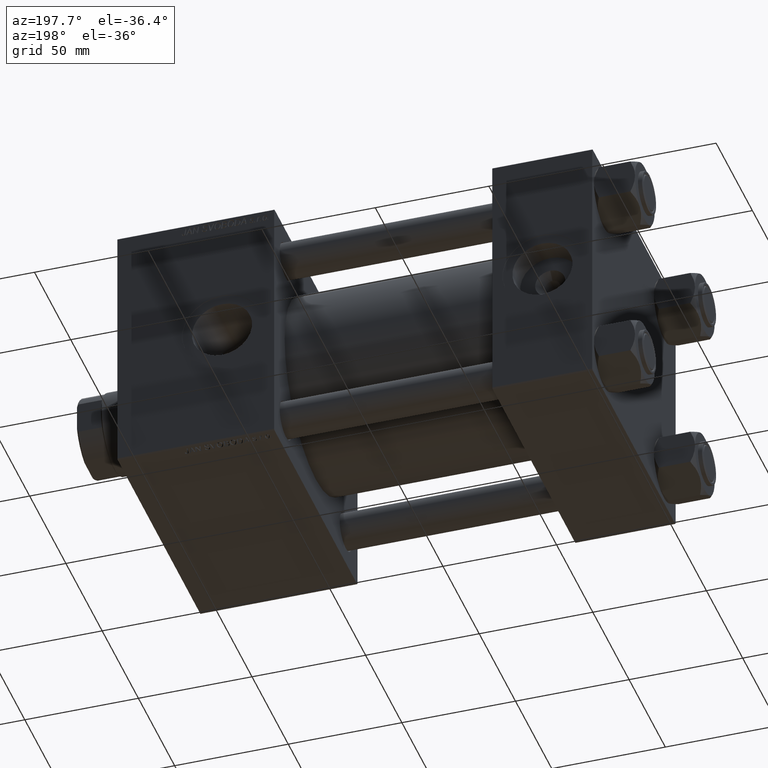
[diagram: clean part render]
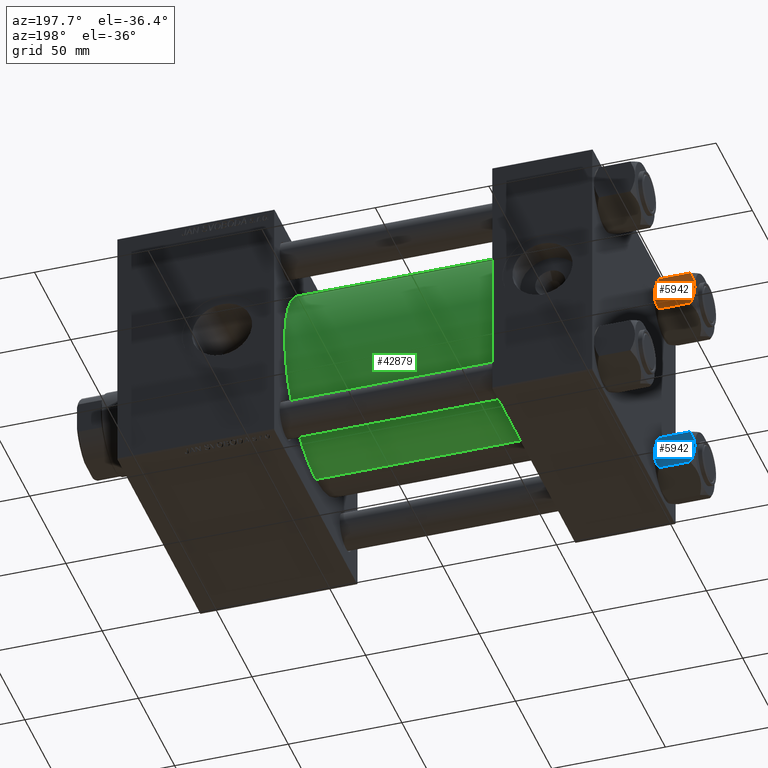
[diagram: same view with three faces highlighted in distinct colors, each labeled with its STEP entity id]
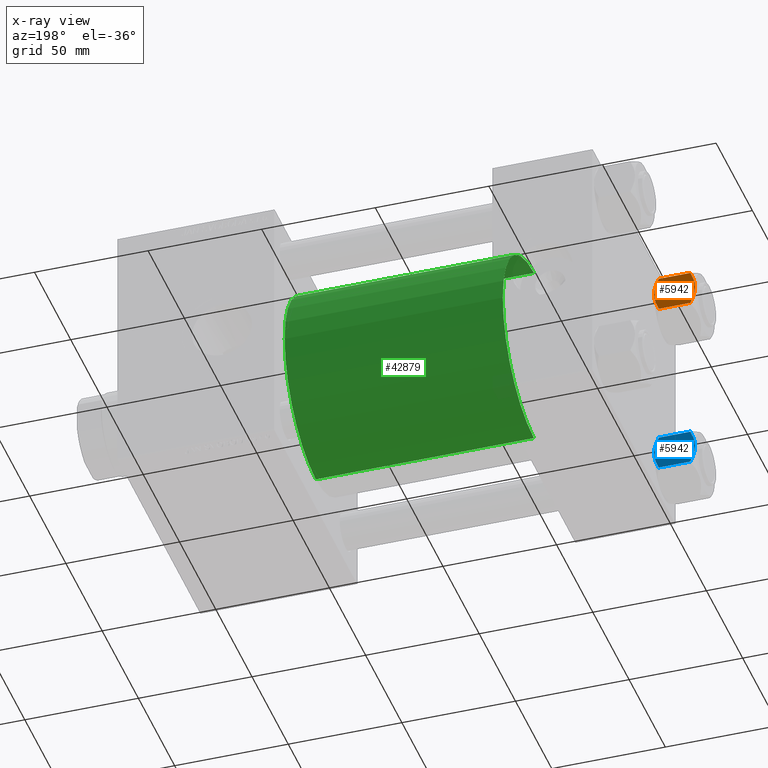
[diagram: x-ray of the same camera — body ghosted, the three highlighted faces saturated]
A machine part, auxiliary view with three faces highlighted in distinct colors.
The next image is the same camera in x-ray (body ghosted, the three faces saturated) — at least one of them is partly hidden behind the body in this view.
Their STEP definitions:

[orange] entity #5942 — the highlighted planar face has unit normal (-0, -1, 0).
#174 = CARTESIAN_POINT ( 'NONE',  ( 7.622943475354630571, -13.52731680711293372, -16.00000000000000000 ) ) ;
#524 = EDGE_CURVE ( 'NONE', #19882, #33821, #894, .T. ) ;
#531 = CARTESIAN_POINT ( 'NONE',  ( -7.030203932307560244, -13.52731680711293372, -16.29099812210859710 ) ) ;
#559 = ORIENTED_EDGE ( 'NONE', *, *, #44660, .F. ) ;
#878 = CARTESIAN_POINT ( 'NONE',  ( 7.622943475354630571, -13.52731680711293372, -16.00000000000000000 ) ) ;
#894 = LINE ( 'NONE', #44674, #5980 ) ;
#1727 = CARTESIAN_POINT ( 'NONE',  ( 7.810000000000002274, -13.52731680711293372, -18.00000000000000000 ) ) ;
#1875 = CARTESIAN_POINT ( 'NONE',  ( 7.810000000000002274, -13.52731680711293372, -1.999999999999998224 ) ) ;
#2148 = CARTESIAN_POINT ( 'NONE',  ( -5.189513245496330640, -13.52731680711293905, -0.9501108431732574466 ) ) ;
#3782 = CARTESIAN_POINT ( 'NONE',  ( 3.004629197474319246E-15, -13.52731680711293727, 0.000000000000000000 ) ) ;
#4074 = VERTEX_POINT ( 'NONE', #48386 ) ;
#4899 = CARTESIAN_POINT ( 'NONE',  ( -3.287826776903143067, -13.52731680711293727, -17.61954155462465366 ) ) ;
#5833 = DIRECTION ( 'NONE',  ( -1.000000000000000000, -2.221156819432531199E-16, 0.000000000000000000 ) ) ;
#5942 = ADVANCED_FACE ( 'NONE', ( #44746 ), #36800, .F. ) ;
#5975 = CARTESIAN_POINT ( 'NONE',  ( 3.004629197474319246E-15, -13.52731680711293727, 0.000000000000000000 ) ) ;
#5980 = VECTOR ( 'NONE', #12709, 1000.000000000000000 ) ;
#6823 = AXIS2_PLACEMENT_3D ( 'NONE', #1727, #40902, #5833 ) ;
#6865 = CARTESIAN_POINT ( 'NONE',  ( 7.030203932307590442, -13.52731680711293727, -1.709001877891394017 ) ) ;
#6908 = VECTOR ( 'NONE', #11295, 1000.000000000000000 ) ;
#7828 = B_SPLINE_CURVE_WITH_KNOTS ( 'NONE', 3,
 ( #35622, #44075, #32050, #9014, #15686, #31294, #4899, #24619, #20521, #27706, #531, #46894 ),
 .UNSPECIFIED., .F., .F.,
 ( 4, 2, 2, 2, 2, 4 ),
 ( 0.02774433486126546416, 0.02873404020403549919, 0.02972374554680553421, 0.03170315623234560426, 0.03368256691788567431, 0.03566197760342574435 ),
 .UNSPECIFIED. ) ;
#8546 = ORIENTED_EDGE ( 'NONE', *, *, #27789, .F. ) ;
#9014 = CARTESIAN_POINT ( 'NONE',  ( -1.333889873825127026, -13.52731680711293727, -17.93843358996560156 ) ) ;
#10363 = CARTESIAN_POINT ( 'NONE',  ( -2.638177715023105385, -13.52731680711294082, -0.2001540676698838062 ) ) ;
#11230 = CARTESIAN_POINT ( 'NONE',  ( 0.3330234424833860007, -13.52731680711293727, 1.736982230502816853E-15 ) ) ;
#11295 = DIRECTION ( 'NONE',  ( -0.000000000000000000, -0.000000000000000000, 1.000000000000000000 ) ) ;
#11489 = CARTESIAN_POINT ( 'NONE',  ( 7.030888348548049116, -13.52731680711293372, -16.29066211644970608 ) ) ;
#11898 = EDGE_CURVE ( 'NONE', #4074, #23043, #23073, .T. ) ;
#12561 = CARTESIAN_POINT ( 'NONE',  ( 7.810000000000002274, -13.52731680711293372, -16.00000000000000000 ) ) ;
#12709 = DIRECTION ( 'NONE',  ( 1.000000000000000000, 2.221156819432531199E-16, -0.000000000000000000 ) ) ;
#12957 = DIRECTION ( 'NONE',  ( -0.000000000000000000, -0.000000000000000000, 1.000000000000000000 ) ) ;
#13439 = CARTESIAN_POINT ( 'NONE',  ( 3.004629197474319246E-15, -13.52731680711293727, 0.000000000000000000 ) ) ;
#13451 = ORIENTED_EDGE ( 'NONE', *, *, #13508, .F. ) ;
#13508 = EDGE_CURVE ( 'NONE', #26713, #19882, #48503, .T. ) ;
#13689 = CARTESIAN_POINT ( 'NONE',  ( -7.622943475354647447, -13.52731680711293727, -2.000000000000000000 ) ) ;
#13946 = CARTESIAN_POINT ( 'NONE',  ( -7.030888348548060662, -13.52731680711294082, -1.709337883550297699 ) ) ;
#14309 = VERTEX_POINT ( 'NONE', #878 ) ;
#14704 = CARTESIAN_POINT ( 'NONE',  ( -7.622943475354625242, -13.52731680711293727, -16.00000000000000000 ) ) ;
#15686 = CARTESIAN_POINT ( 'NONE',  ( -1.663410456966165407, -13.52731680711293727, -17.90195050864300086 ) ) ;
#15982 = VECTOR ( 'NONE', #31506, 1000.000000000000000 ) ;
#16114 = ORIENTED_EDGE ( 'NONE', *, *, #37247, .F. ) ;
#16205 = VERTEX_POINT ( 'NONE', #38232 ) ;
#16787 = B_SPLINE_CURVE_WITH_KNOTS ( 'NONE', 3,
 ( #3782, #11230, #42442, #19405, #18649, #26838, #34259, #41935, #22977, #50370, #6865, #18897 ),
 .UNSPECIFIED., .F., .F.,
 ( 4, 2, 2, 2, 2, 4 ),
 ( 0.02774433486126546416, 0.02873404020403550266, 0.02972374554680554115, 0.03170315623234561814, 0.03368256691788569512, 0.03566197760342577211 ),
 .UNSPECIFIED. ) ;
#16861 = EDGE_CURVE ( 'NONE', #14309, #16205, #41271, .T. ) ;
#18106 = CARTESIAN_POINT ( 'NONE',  ( -7.809999999999999609, -13.52731680711293727, -1.999999999999998224 ) ) ;
#18649 = CARTESIAN_POINT ( 'NONE',  ( 1.663410456966175843, -13.52731680711293372, -0.09804949135698878826 ) ) ;
#18897 = CARTESIAN_POINT ( 'NONE',  ( 7.622943475354652776, -13.52731680711293372, -2.000000000000000000 ) ) ;
#19405 = CARTESIAN_POINT ( 'NONE',  ( 1.333889873825135686, -13.52731680711293549, -0.06156641003439144999 ) ) ;
#19882 = VERTEX_POINT ( 'NONE', #18106 ) ;
#20521 = CARTESIAN_POINT ( 'NONE',  ( -5.184073258379385152, -13.52731680711293727, -17.05185620934990709 ) ) ;
#21611 = CARTESIAN_POINT ( 'NONE',  ( -6.427364677720470709, -13.52731680711293727, -1.438506937155139109 ) ) ;
#22977 = CARTESIAN_POINT ( 'NONE',  ( 5.184073258379408244, -13.52731680711293372, -0.9481437906500832513 ) ) ;
#23043 = VERTEX_POINT ( 'NONE', #1875 ) ;
#23073 = LINE ( 'NONE', #46873, #31564 ) ;
#23171 = CARTESIAN_POINT ( 'NONE',  ( -7.809999999999999609, -13.52731680711293727, -16.00000000000000000 ) ) ;
#24256 = CARTESIAN_POINT ( 'NONE',  ( 4.553769687922296860, -13.52731680711293372, -17.26727080048547691 ) ) ;
#24372 = ORIENTED_EDGE ( 'NONE', *, *, #38760, .T. ) ;
#24579 = LINE ( 'NONE', #12561, #15982 ) ;
#24619 = CARTESIAN_POINT ( 'NONE',  ( -4.557734399832399141, -13.52731680711293905, -17.26585298258847700 ) ) ;
#25091 = CARTESIAN_POINT ( 'NONE',  ( -7.622943475354647447, -13.52731680711293727, -2.000000000000000000 ) ) ;
#26713 = VERTEX_POINT ( 'NONE', #23171 ) ;
#26838 = CARTESIAN_POINT ( 'NONE',  ( 2.644243758052992277, -13.52731680711293372, -0.2408281198023969893 ) ) ;
#27350 = CARTESIAN_POINT ( 'NONE',  ( 6.427364677720458275, -13.52731680711293549, -16.56149306284486045 ) ) ;
#27459 = VERTEX_POINT ( 'NONE', #5975 ) ;
#27706 = CARTESIAN_POINT ( 'NONE',  ( -6.422751913021801151, -13.52731680711293905, -16.56349088907410305 ) ) ;
#27789 = EDGE_CURVE ( 'NONE', #27459, #4074, #16787, .T. ) ;
#29302 = CARTESIAN_POINT ( 'NONE',  ( -4.553769687922305742, -13.52731680711294082, -0.7327291995145158721 ) ) ;
#29415 = CARTESIAN_POINT ( 'NONE',  ( 7.810000000000002274, -13.52731680711293372, -16.00000000000000000 ) ) ;
#29978 = LINE ( 'NONE', #46336, #6908 ) ;
#30772 = DIRECTION ( 'NONE',  ( 1.000000000000000000, 2.221156819432531199E-16, -0.000000000000000000 ) ) ;
#31294 = CARTESIAN_POINT ( 'NONE',  ( -2.644243758052979398, -13.52731680711293905, -17.75917188019759507 ) ) ;
#31506 = DIRECTION ( 'NONE',  ( -1.000000000000000000, -2.221156819432531199E-16, 0.000000000000000000 ) ) ;
#31564 = VECTOR ( 'NONE', #30772, 1000.000000000000000 ) ;
#32050 = CARTESIAN_POINT ( 'NONE',  ( -0.6693083573771156924, -13.52731680711293549, -17.98750666918891028 ) ) ;
#32254 = VECTOR ( 'NONE', #49281, 1000.000000000000000 ) ;
#33301 = ORIENTED_EDGE ( 'NONE', *, *, #43789, .F. ) ;
#33821 = VERTEX_POINT ( 'NONE', #25091 ) ;
#34259 = CARTESIAN_POINT ( 'NONE',  ( 3.287826776903156833, -13.52731680711293194, -0.3804584453753362960 ) ) ;
#35622 = CARTESIAN_POINT ( 'NONE',  ( 3.004629197474316879E-15, -13.52731680711292661, -18.00000000000000000 ) ) ;
#35671 = VECTOR ( 'NONE', #12957, 1000.000000000000000 ) ;
#35771 = CARTESIAN_POINT ( 'NONE',  ( 1.335584685993413956, -13.52731680711293194, -17.99999999999998934 ) ) ;
#35970 = CARTESIAN_POINT ( 'NONE',  ( -7.809999999999999609, -13.52731680711293727, -18.00000000000000000 ) ) ;
#36023 = CARTESIAN_POINT ( 'NONE',  ( 3.004629197474316879E-15, -13.52731680711292661, -18.00000000000000000 ) ) ;
#36800 = PLANE ( 'NONE',  #6823 ) ;
#37247 = EDGE_CURVE ( 'NONE', #41429, #14309, #45439, .T. ) ;
#37503 = CARTESIAN_POINT ( 'NONE',  ( 7.810000000000002274, -13.52731680711293372, -16.00000000000000000 ) ) ;
#37662 = EDGE_CURVE ( 'NONE', #16205, #43953, #7828, .T. ) ;
#38232 = CARTESIAN_POINT ( 'NONE',  ( 3.004629197474316879E-15, -13.52731680711292661, -18.00000000000000000 ) ) ;
#38760 = EDGE_CURVE ( 'NONE', #41429, #23043, #29978, .T. ) ;
#38867 = CARTESIAN_POINT ( 'NONE',  ( 5.189513245496319094, -13.52731680711293372, -17.04988915682674033 ) ) ;
#39216 = ORIENTED_EDGE ( 'NONE', *, *, #11898, .F. ) ;
#40257 = ORIENTED_EDGE ( 'NONE', *, *, #37662, .F. ) ;
#40902 = DIRECTION ( 'NONE',  ( -2.221156819432531199E-16, 1.000000000000000000, 0.000000000000000000 ) ) ;
#41271 = B_SPLINE_CURVE_WITH_KNOTS ( 'NONE', 3,
 ( #174, #11489, #27350, #38867, #24256, #46535, #35771, #36023 ),
 .UNSPECIFIED., .F., .F.,
 ( 4, 2, 2, 4 ),
 ( 0.01980594295952731870, 0.02179054093496185507, 0.02377513891039638796, 0.02774433486126546416 ),
 .UNSPECIFIED. ) ;
#41429 = VERTEX_POINT ( 'NONE', #29415 ) ;
#41935 = CARTESIAN_POINT ( 'NONE',  ( 4.557734399832416905, -13.52731680711293016, -0.7341470174115138914 ) ) ;
#42442 = CARTESIAN_POINT ( 'NONE',  ( 0.6693083573771232420, -13.52731680711293372, -0.01249333081107902900 ) ) ;
#43143 = ORIENTED_EDGE ( 'NONE', *, *, #524, .F. ) ;
#43789 = EDGE_CURVE ( 'NONE', #33821, #27459, #48326, .T. ) ;
#43953 = VERTEX_POINT ( 'NONE', #14704 ) ;
#44075 = CARTESIAN_POINT ( 'NONE',  ( -0.3330234424833806162, -13.52731680711293727, -17.99999999999999645 ) ) ;
#44660 = EDGE_CURVE ( 'NONE', #43953, #26713, #24579, .T. ) ;
#44674 = CARTESIAN_POINT ( 'NONE',  ( 7.810000000000002274, -13.52731680711293372, -1.999999999999998224 ) ) ;
#44746 = FACE_OUTER_BOUND ( 'NONE', #44760, .T. ) ;
#44760 = EDGE_LOOP ( 'NONE', ( #16114, #24372, #39216, #8546, #33301, #43143, #13451, #559, #40257, #44828 ) ) ;
#44828 = ORIENTED_EDGE ( 'NONE', *, *, #16861, .F. ) ;
#45154 = CARTESIAN_POINT ( 'NONE',  ( -1.335584685993413956, -13.52731680711294082, 1.666960840196463265E-15 ) ) ;
#45439 = LINE ( 'NONE', #37503, #32254 ) ;
#46336 = CARTESIAN_POINT ( 'NONE',  ( 7.810000000000002274, -13.52731680711293372, -18.00000000000000000 ) ) ;
#46535 = CARTESIAN_POINT ( 'NONE',  ( 2.638177715023103609, -13.52731680711293372, -17.79984593233010415 ) ) ;
#46873 = CARTESIAN_POINT ( 'NONE',  ( 7.810000000000002274, -13.52731680711293372, -1.999999999999998224 ) ) ;
#46894 = CARTESIAN_POINT ( 'NONE',  ( -7.622943475354625242, -13.52731680711293727, -16.00000000000000000 ) ) ;
#48326 = B_SPLINE_CURVE_WITH_KNOTS ( 'NONE', 3,
 ( #13689, #13946, #21611, #2148, #29302, #10363, #45154, #13439 ),
 .UNSPECIFIED., .F., .F.,
 ( 4, 2, 2, 4 ),
 ( 0.01980594295952729095, 0.02179054093496183425, 0.02377513891039637756, 0.02774433486126546416 ),
 .UNSPECIFIED. ) ;
#48386 = CARTESIAN_POINT ( 'NONE',  ( 7.622943475354652776, -13.52731680711293372, -2.000000000000000000 ) ) ;
#48503 = LINE ( 'NONE', #35970, #35671 ) ;
#49281 = DIRECTION ( 'NONE',  ( -1.000000000000000000, -2.221156819432531199E-16, 0.000000000000000000 ) ) ;
#50370 = CARTESIAN_POINT ( 'NONE',  ( 6.422751913021828685, -13.52731680711293549, -1.436509110925896948 ) ) ;

[blue] entity #5942 — the highlighted planar face has unit normal (-0, -1, 0).
#174 = CARTESIAN_POINT ( 'NONE',  ( 7.622943475354630571, -13.52731680711293372, -16.00000000000000000 ) ) ;
#524 = EDGE_CURVE ( 'NONE', #19882, #33821, #894, .T. ) ;
#531 = CARTESIAN_POINT ( 'NONE',  ( -7.030203932307560244, -13.52731680711293372, -16.29099812210859710 ) ) ;
#559 = ORIENTED_EDGE ( 'NONE', *, *, #44660, .F. ) ;
#878 = CARTESIAN_POINT ( 'NONE',  ( 7.622943475354630571, -13.52731680711293372, -16.00000000000000000 ) ) ;
#894 = LINE ( 'NONE', #44674, #5980 ) ;
#1727 = CARTESIAN_POINT ( 'NONE',  ( 7.810000000000002274, -13.52731680711293372, -18.00000000000000000 ) ) ;
#1875 = CARTESIAN_POINT ( 'NONE',  ( 7.810000000000002274, -13.52731680711293372, -1.999999999999998224 ) ) ;
#2148 = CARTESIAN_POINT ( 'NONE',  ( -5.189513245496330640, -13.52731680711293905, -0.9501108431732574466 ) ) ;
#3782 = CARTESIAN_POINT ( 'NONE',  ( 3.004629197474319246E-15, -13.52731680711293727, 0.000000000000000000 ) ) ;
#4074 = VERTEX_POINT ( 'NONE', #48386 ) ;
#4899 = CARTESIAN_POINT ( 'NONE',  ( -3.287826776903143067, -13.52731680711293727, -17.61954155462465366 ) ) ;
#5833 = DIRECTION ( 'NONE',  ( -1.000000000000000000, -2.221156819432531199E-16, 0.000000000000000000 ) ) ;
#5942 = ADVANCED_FACE ( 'NONE', ( #44746 ), #36800, .F. ) ;
#5975 = CARTESIAN_POINT ( 'NONE',  ( 3.004629197474319246E-15, -13.52731680711293727, 0.000000000000000000 ) ) ;
#5980 = VECTOR ( 'NONE', #12709, 1000.000000000000000 ) ;
#6823 = AXIS2_PLACEMENT_3D ( 'NONE', #1727, #40902, #5833 ) ;
#6865 = CARTESIAN_POINT ( 'NONE',  ( 7.030203932307590442, -13.52731680711293727, -1.709001877891394017 ) ) ;
#6908 = VECTOR ( 'NONE', #11295, 1000.000000000000000 ) ;
#7828 = B_SPLINE_CURVE_WITH_KNOTS ( 'NONE', 3,
 ( #35622, #44075, #32050, #9014, #15686, #31294, #4899, #24619, #20521, #27706, #531, #46894 ),
 .UNSPECIFIED., .F., .F.,
 ( 4, 2, 2, 2, 2, 4 ),
 ( 0.02774433486126546416, 0.02873404020403549919, 0.02972374554680553421, 0.03170315623234560426, 0.03368256691788567431, 0.03566197760342574435 ),
 .UNSPECIFIED. ) ;
#8546 = ORIENTED_EDGE ( 'NONE', *, *, #27789, .F. ) ;
#9014 = CARTESIAN_POINT ( 'NONE',  ( -1.333889873825127026, -13.52731680711293727, -17.93843358996560156 ) ) ;
#10363 = CARTESIAN_POINT ( 'NONE',  ( -2.638177715023105385, -13.52731680711294082, -0.2001540676698838062 ) ) ;
#11230 = CARTESIAN_POINT ( 'NONE',  ( 0.3330234424833860007, -13.52731680711293727, 1.736982230502816853E-15 ) ) ;
#11295 = DIRECTION ( 'NONE',  ( -0.000000000000000000, -0.000000000000000000, 1.000000000000000000 ) ) ;
#11489 = CARTESIAN_POINT ( 'NONE',  ( 7.030888348548049116, -13.52731680711293372, -16.29066211644970608 ) ) ;
#11898 = EDGE_CURVE ( 'NONE', #4074, #23043, #23073, .T. ) ;
#12561 = CARTESIAN_POINT ( 'NONE',  ( 7.810000000000002274, -13.52731680711293372, -16.00000000000000000 ) ) ;
#12709 = DIRECTION ( 'NONE',  ( 1.000000000000000000, 2.221156819432531199E-16, -0.000000000000000000 ) ) ;
#12957 = DIRECTION ( 'NONE',  ( -0.000000000000000000, -0.000000000000000000, 1.000000000000000000 ) ) ;
#13439 = CARTESIAN_POINT ( 'NONE',  ( 3.004629197474319246E-15, -13.52731680711293727, 0.000000000000000000 ) ) ;
#13451 = ORIENTED_EDGE ( 'NONE', *, *, #13508, .F. ) ;
#13508 = EDGE_CURVE ( 'NONE', #26713, #19882, #48503, .T. ) ;
#13689 = CARTESIAN_POINT ( 'NONE',  ( -7.622943475354647447, -13.52731680711293727, -2.000000000000000000 ) ) ;
#13946 = CARTESIAN_POINT ( 'NONE',  ( -7.030888348548060662, -13.52731680711294082, -1.709337883550297699 ) ) ;
#14309 = VERTEX_POINT ( 'NONE', #878 ) ;
#14704 = CARTESIAN_POINT ( 'NONE',  ( -7.622943475354625242, -13.52731680711293727, -16.00000000000000000 ) ) ;
#15686 = CARTESIAN_POINT ( 'NONE',  ( -1.663410456966165407, -13.52731680711293727, -17.90195050864300086 ) ) ;
#15982 = VECTOR ( 'NONE', #31506, 1000.000000000000000 ) ;
#16114 = ORIENTED_EDGE ( 'NONE', *, *, #37247, .F. ) ;
#16205 = VERTEX_POINT ( 'NONE', #38232 ) ;
#16787 = B_SPLINE_CURVE_WITH_KNOTS ( 'NONE', 3,
 ( #3782, #11230, #42442, #19405, #18649, #26838, #34259, #41935, #22977, #50370, #6865, #18897 ),
 .UNSPECIFIED., .F., .F.,
 ( 4, 2, 2, 2, 2, 4 ),
 ( 0.02774433486126546416, 0.02873404020403550266, 0.02972374554680554115, 0.03170315623234561814, 0.03368256691788569512, 0.03566197760342577211 ),
 .UNSPECIFIED. ) ;
#16861 = EDGE_CURVE ( 'NONE', #14309, #16205, #41271, .T. ) ;
#18106 = CARTESIAN_POINT ( 'NONE',  ( -7.809999999999999609, -13.52731680711293727, -1.999999999999998224 ) ) ;
#18649 = CARTESIAN_POINT ( 'NONE',  ( 1.663410456966175843, -13.52731680711293372, -0.09804949135698878826 ) ) ;
#18897 = CARTESIAN_POINT ( 'NONE',  ( 7.622943475354652776, -13.52731680711293372, -2.000000000000000000 ) ) ;
#19405 = CARTESIAN_POINT ( 'NONE',  ( 1.333889873825135686, -13.52731680711293549, -0.06156641003439144999 ) ) ;
#19882 = VERTEX_POINT ( 'NONE', #18106 ) ;
#20521 = CARTESIAN_POINT ( 'NONE',  ( -5.184073258379385152, -13.52731680711293727, -17.05185620934990709 ) ) ;
#21611 = CARTESIAN_POINT ( 'NONE',  ( -6.427364677720470709, -13.52731680711293727, -1.438506937155139109 ) ) ;
#22977 = CARTESIAN_POINT ( 'NONE',  ( 5.184073258379408244, -13.52731680711293372, -0.9481437906500832513 ) ) ;
#23043 = VERTEX_POINT ( 'NONE', #1875 ) ;
#23073 = LINE ( 'NONE', #46873, #31564 ) ;
#23171 = CARTESIAN_POINT ( 'NONE',  ( -7.809999999999999609, -13.52731680711293727, -16.00000000000000000 ) ) ;
#24256 = CARTESIAN_POINT ( 'NONE',  ( 4.553769687922296860, -13.52731680711293372, -17.26727080048547691 ) ) ;
#24372 = ORIENTED_EDGE ( 'NONE', *, *, #38760, .T. ) ;
#24579 = LINE ( 'NONE', #12561, #15982 ) ;
#24619 = CARTESIAN_POINT ( 'NONE',  ( -4.557734399832399141, -13.52731680711293905, -17.26585298258847700 ) ) ;
#25091 = CARTESIAN_POINT ( 'NONE',  ( -7.622943475354647447, -13.52731680711293727, -2.000000000000000000 ) ) ;
#26713 = VERTEX_POINT ( 'NONE', #23171 ) ;
#26838 = CARTESIAN_POINT ( 'NONE',  ( 2.644243758052992277, -13.52731680711293372, -0.2408281198023969893 ) ) ;
#27350 = CARTESIAN_POINT ( 'NONE',  ( 6.427364677720458275, -13.52731680711293549, -16.56149306284486045 ) ) ;
#27459 = VERTEX_POINT ( 'NONE', #5975 ) ;
#27706 = CARTESIAN_POINT ( 'NONE',  ( -6.422751913021801151, -13.52731680711293905, -16.56349088907410305 ) ) ;
#27789 = EDGE_CURVE ( 'NONE', #27459, #4074, #16787, .T. ) ;
#29302 = CARTESIAN_POINT ( 'NONE',  ( -4.553769687922305742, -13.52731680711294082, -0.7327291995145158721 ) ) ;
#29415 = CARTESIAN_POINT ( 'NONE',  ( 7.810000000000002274, -13.52731680711293372, -16.00000000000000000 ) ) ;
#29978 = LINE ( 'NONE', #46336, #6908 ) ;
#30772 = DIRECTION ( 'NONE',  ( 1.000000000000000000, 2.221156819432531199E-16, -0.000000000000000000 ) ) ;
#31294 = CARTESIAN_POINT ( 'NONE',  ( -2.644243758052979398, -13.52731680711293905, -17.75917188019759507 ) ) ;
#31506 = DIRECTION ( 'NONE',  ( -1.000000000000000000, -2.221156819432531199E-16, 0.000000000000000000 ) ) ;
#31564 = VECTOR ( 'NONE', #30772, 1000.000000000000000 ) ;
#32050 = CARTESIAN_POINT ( 'NONE',  ( -0.6693083573771156924, -13.52731680711293549, -17.98750666918891028 ) ) ;
#32254 = VECTOR ( 'NONE', #49281, 1000.000000000000000 ) ;
#33301 = ORIENTED_EDGE ( 'NONE', *, *, #43789, .F. ) ;
#33821 = VERTEX_POINT ( 'NONE', #25091 ) ;
#34259 = CARTESIAN_POINT ( 'NONE',  ( 3.287826776903156833, -13.52731680711293194, -0.3804584453753362960 ) ) ;
#35622 = CARTESIAN_POINT ( 'NONE',  ( 3.004629197474316879E-15, -13.52731680711292661, -18.00000000000000000 ) ) ;
#35671 = VECTOR ( 'NONE', #12957, 1000.000000000000000 ) ;
#35771 = CARTESIAN_POINT ( 'NONE',  ( 1.335584685993413956, -13.52731680711293194, -17.99999999999998934 ) ) ;
#35970 = CARTESIAN_POINT ( 'NONE',  ( -7.809999999999999609, -13.52731680711293727, -18.00000000000000000 ) ) ;
#36023 = CARTESIAN_POINT ( 'NONE',  ( 3.004629197474316879E-15, -13.52731680711292661, -18.00000000000000000 ) ) ;
#36800 = PLANE ( 'NONE',  #6823 ) ;
#37247 = EDGE_CURVE ( 'NONE', #41429, #14309, #45439, .T. ) ;
#37503 = CARTESIAN_POINT ( 'NONE',  ( 7.810000000000002274, -13.52731680711293372, -16.00000000000000000 ) ) ;
#37662 = EDGE_CURVE ( 'NONE', #16205, #43953, #7828, .T. ) ;
#38232 = CARTESIAN_POINT ( 'NONE',  ( 3.004629197474316879E-15, -13.52731680711292661, -18.00000000000000000 ) ) ;
#38760 = EDGE_CURVE ( 'NONE', #41429, #23043, #29978, .T. ) ;
#38867 = CARTESIAN_POINT ( 'NONE',  ( 5.189513245496319094, -13.52731680711293372, -17.04988915682674033 ) ) ;
#39216 = ORIENTED_EDGE ( 'NONE', *, *, #11898, .F. ) ;
#40257 = ORIENTED_EDGE ( 'NONE', *, *, #37662, .F. ) ;
#40902 = DIRECTION ( 'NONE',  ( -2.221156819432531199E-16, 1.000000000000000000, 0.000000000000000000 ) ) ;
#41271 = B_SPLINE_CURVE_WITH_KNOTS ( 'NONE', 3,
 ( #174, #11489, #27350, #38867, #24256, #46535, #35771, #36023 ),
 .UNSPECIFIED., .F., .F.,
 ( 4, 2, 2, 4 ),
 ( 0.01980594295952731870, 0.02179054093496185507, 0.02377513891039638796, 0.02774433486126546416 ),
 .UNSPECIFIED. ) ;
#41429 = VERTEX_POINT ( 'NONE', #29415 ) ;
#41935 = CARTESIAN_POINT ( 'NONE',  ( 4.557734399832416905, -13.52731680711293016, -0.7341470174115138914 ) ) ;
#42442 = CARTESIAN_POINT ( 'NONE',  ( 0.6693083573771232420, -13.52731680711293372, -0.01249333081107902900 ) ) ;
#43143 = ORIENTED_EDGE ( 'NONE', *, *, #524, .F. ) ;
#43789 = EDGE_CURVE ( 'NONE', #33821, #27459, #48326, .T. ) ;
#43953 = VERTEX_POINT ( 'NONE', #14704 ) ;
#44075 = CARTESIAN_POINT ( 'NONE',  ( -0.3330234424833806162, -13.52731680711293727, -17.99999999999999645 ) ) ;
#44660 = EDGE_CURVE ( 'NONE', #43953, #26713, #24579, .T. ) ;
#44674 = CARTESIAN_POINT ( 'NONE',  ( 7.810000000000002274, -13.52731680711293372, -1.999999999999998224 ) ) ;
#44746 = FACE_OUTER_BOUND ( 'NONE', #44760, .T. ) ;
#44760 = EDGE_LOOP ( 'NONE', ( #16114, #24372, #39216, #8546, #33301, #43143, #13451, #559, #40257, #44828 ) ) ;
#44828 = ORIENTED_EDGE ( 'NONE', *, *, #16861, .F. ) ;
#45154 = CARTESIAN_POINT ( 'NONE',  ( -1.335584685993413956, -13.52731680711294082, 1.666960840196463265E-15 ) ) ;
#45439 = LINE ( 'NONE', #37503, #32254 ) ;
#46336 = CARTESIAN_POINT ( 'NONE',  ( 7.810000000000002274, -13.52731680711293372, -18.00000000000000000 ) ) ;
#46535 = CARTESIAN_POINT ( 'NONE',  ( 2.638177715023103609, -13.52731680711293372, -17.79984593233010415 ) ) ;
#46873 = CARTESIAN_POINT ( 'NONE',  ( 7.810000000000002274, -13.52731680711293372, -1.999999999999998224 ) ) ;
#46894 = CARTESIAN_POINT ( 'NONE',  ( -7.622943475354625242, -13.52731680711293727, -16.00000000000000000 ) ) ;
#48326 = B_SPLINE_CURVE_WITH_KNOTS ( 'NONE', 3,
 ( #13689, #13946, #21611, #2148, #29302, #10363, #45154, #13439 ),
 .UNSPECIFIED., .F., .F.,
 ( 4, 2, 2, 4 ),
 ( 0.01980594295952729095, 0.02179054093496183425, 0.02377513891039637756, 0.02774433486126546416 ),
 .UNSPECIFIED. ) ;
#48386 = CARTESIAN_POINT ( 'NONE',  ( 7.622943475354652776, -13.52731680711293372, -2.000000000000000000 ) ) ;
#48503 = LINE ( 'NONE', #35970, #35671 ) ;
#49281 = DIRECTION ( 'NONE',  ( -1.000000000000000000, -2.221156819432531199E-16, 0.000000000000000000 ) ) ;
#50370 = CARTESIAN_POINT ( 'NONE',  ( 6.422751913021828685, -13.52731680711293549, -1.436509110925896948 ) ) ;

[green] entity #42879 — the highlighted cylindrical surface (partial cylindrical patch) has radius 43 mm, axis along (-1, -0, -0).
#1420 = DIRECTION ( 'NONE',  ( 0.000000000000000000, 0.000000000000000000, -1.000000000000000000 ) ) ;
#1696 = CARTESIAN_POINT ( 'NONE',  ( 140.0000000000000000, 2.663896022368408223E-15, -43.00000000000000000 ) ) ;
#2669 = VERTEX_POINT ( 'NONE', #11442 ) ;
#4650 = ORIENTED_EDGE ( 'NONE', *, *, #24850, .T. ) ;
#4931 = EDGE_CURVE ( 'NONE', #27781, #12928, #37027, .T. ) ;
#6088 = EDGE_LOOP ( 'NONE', ( #18478, #39095, #4650, #35069 ) ) ;
#7062 = AXIS2_PLACEMENT_3D ( 'NONE', #30618, #45962, #26529 ) ;
#8002 = EDGE_CURVE ( 'NONE', #27781, #2669, #36768, .T. ) ;
#11442 = CARTESIAN_POINT ( 'NONE',  ( 44.00000000000000000, 2.663896022368408223E-15, -43.00000000000000000 ) ) ;
#12455 = DIRECTION ( 'NONE',  ( 1.000000000000000000, 0.000000000000000000, 0.000000000000000000 ) ) ;
#12648 = AXIS2_PLACEMENT_3D ( 'NONE', #12973, #12455, #1420 ) ;
#12928 = VERTEX_POINT ( 'NONE', #30021 ) ;
#12973 = CARTESIAN_POINT ( 'NONE',  ( 140.0000000000000000, -2.602085213965210642E-15, 0.000000000000000000 ) ) ;
#13914 = CIRCLE ( 'NONE', #49889, 43.00000000000000000 ) ;
#17801 = CARTESIAN_POINT ( 'NONE',  ( 140.0000000000000000, -2.602085213965210642E-15, 43.00000000000000000 ) ) ;
#17855 = VECTOR ( 'NONE', #29567, 1000.000000000000000 ) ;
#18478 = ORIENTED_EDGE ( 'NONE', *, *, #4931, .F. ) ;
#21001 = EDGE_CURVE ( 'NONE', #12928, #36973, #24978, .T. ) ;
#24850 = EDGE_CURVE ( 'NONE', #2669, #36973, #13914, .T. ) ;
#24978 = LINE ( 'NONE', #17801, #17855 ) ;
#25740 = CARTESIAN_POINT ( 'NONE',  ( 44.00000000000000000, -2.602085213965210642E-15, 0.000000000000000000 ) ) ;
#26529 = DIRECTION ( 'NONE',  ( 0.000000000000000000, 0.000000000000000000, 1.000000000000000000 ) ) ;
#27286 = CYLINDRICAL_SURFACE ( 'NONE', #7062, 43.00000000000000000 ) ;
#27781 = VERTEX_POINT ( 'NONE', #50109 ) ;
#29567 = DIRECTION ( 'NONE',  ( -1.000000000000000000, -0.000000000000000000, -0.000000000000000000 ) ) ;
#29828 = DIRECTION ( 'NONE',  ( 1.000000000000000000, -0.000000000000000000, 0.000000000000000000 ) ) ;
#30021 = CARTESIAN_POINT ( 'NONE',  ( 140.0000000000000000, -2.602085213965210642E-15, 43.00000000000000000 ) ) ;
#30618 = CARTESIAN_POINT ( 'NONE',  ( 140.0000000000000000, -2.602085213965210642E-15, 0.000000000000000000 ) ) ;
#33446 = DIRECTION ( 'NONE',  ( -1.000000000000000000, -0.000000000000000000, -0.000000000000000000 ) ) ;
#35069 = ORIENTED_EDGE ( 'NONE', *, *, #21001, .F. ) ;
#35205 = FACE_OUTER_BOUND ( 'NONE', #6088, .T. ) ;
#36768 = LINE ( 'NONE', #1696, #37936 ) ;
#36973 = VERTEX_POINT ( 'NONE', #38846 ) ;
#37027 = CIRCLE ( 'NONE', #12648, 43.00000000000000000 ) ;
#37936 = VECTOR ( 'NONE', #33446, 1000.000000000000000 ) ;
#38846 = CARTESIAN_POINT ( 'NONE',  ( 44.00000000000000000, -2.602085213965210642E-15, 43.00000000000000000 ) ) ;
#39095 = ORIENTED_EDGE ( 'NONE', *, *, #8002, .T. ) ;
#41347 = DIRECTION ( 'NONE',  ( 0.000000000000000000, 0.000000000000000000, 1.000000000000000000 ) ) ;
#42879 = ADVANCED_FACE ( 'NONE', ( #35205 ), #27286, .T. ) ;
#45962 = DIRECTION ( 'NONE',  ( -1.000000000000000000, -0.000000000000000000, -0.000000000000000000 ) ) ;
#49889 = AXIS2_PLACEMENT_3D ( 'NONE', #25740, #29828, #41347 ) ;
#50109 = CARTESIAN_POINT ( 'NONE',  ( 140.0000000000000000, 2.663896022368408223E-15, -43.00000000000000000 ) ) ;